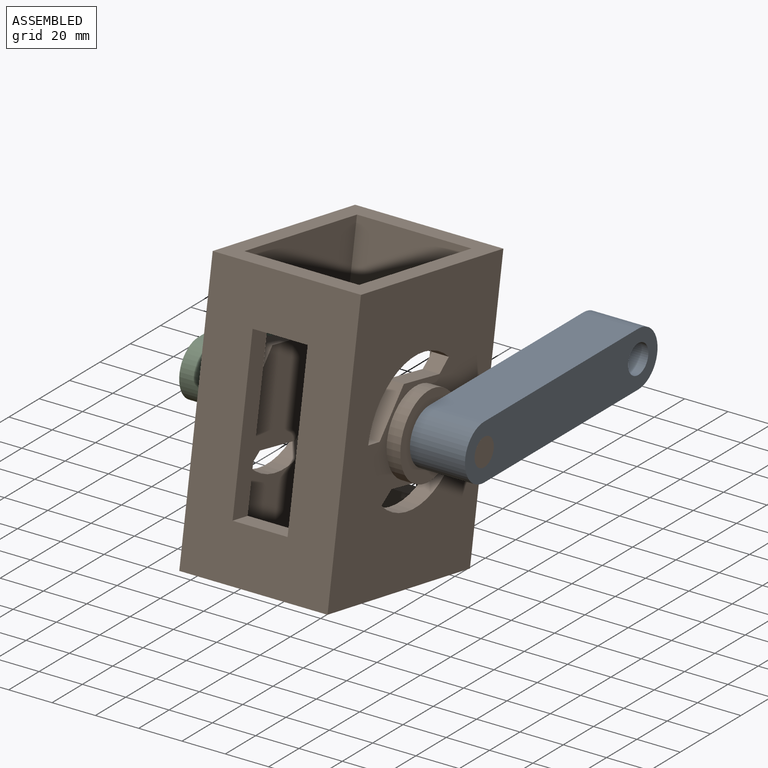
[diagram: assembled view]
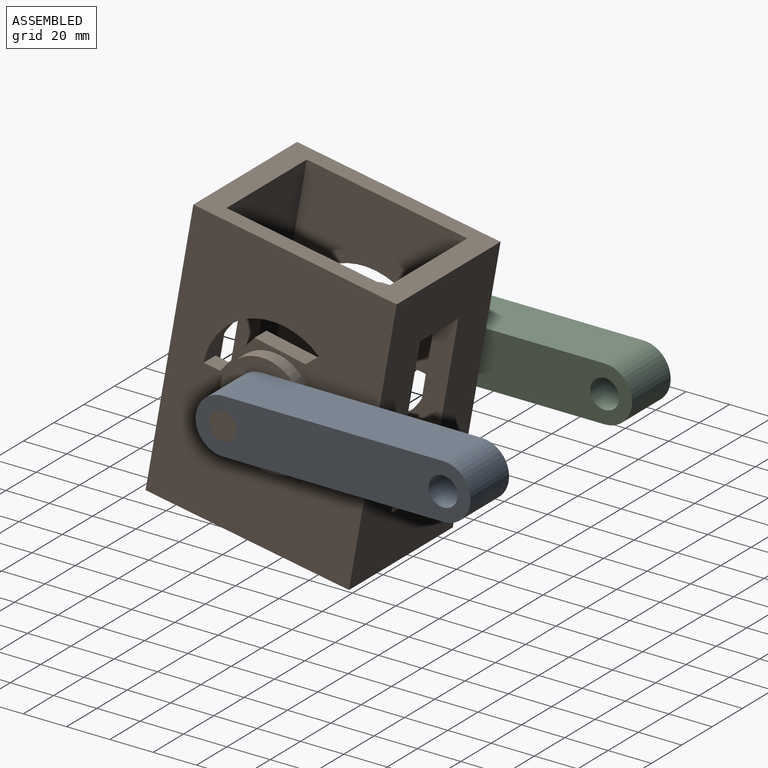
[diagram: assembled view, second angle]
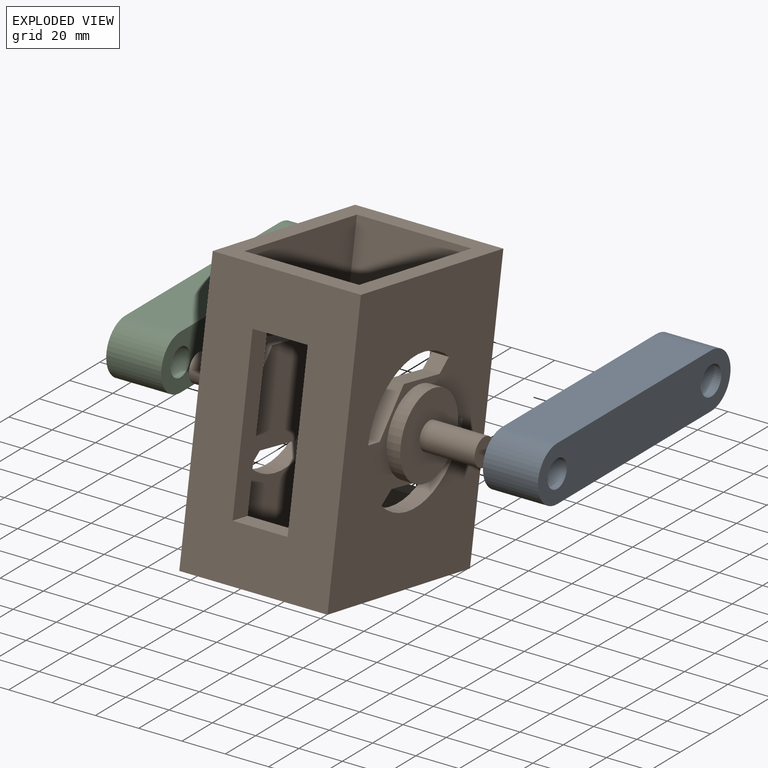
[diagram: exploded view]
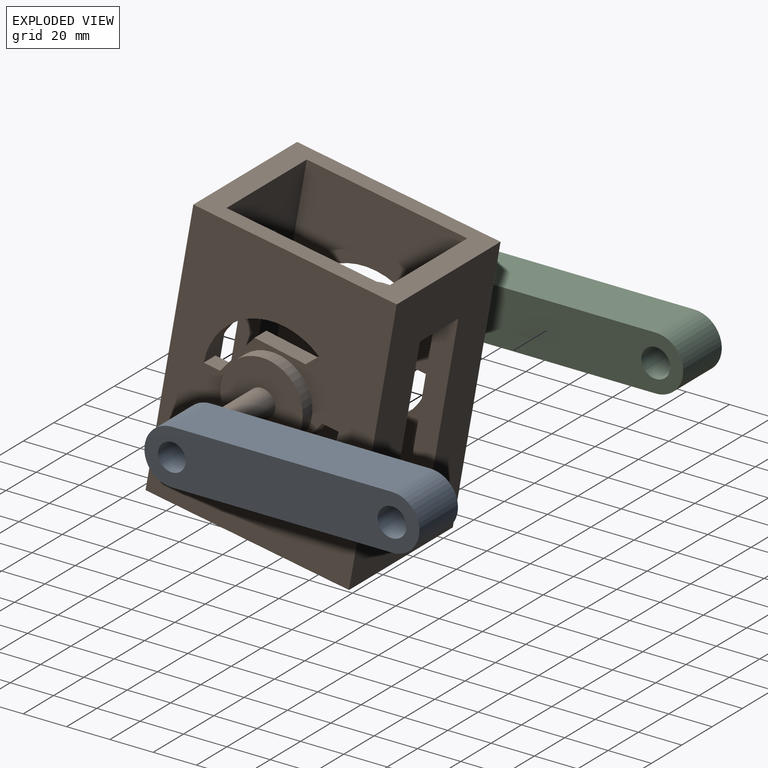
[diagram: exploded view, second angle]
ASSEMBLY  parts=3 mates=2
PART A: 8 faces, bbox 25.4x127x25.4 mm
  f0: cylinder r=12.7mm len=25.4mm, axis (-1,0,0), area 1013.4mm2, adj f1,f3,f6,f7
  f1: plane 101.6x25.4mm, normal (0,0,1), area 2580.6mm2, adj f0,f2,f6,f7
  f2: cylinder r=12.7mm len=25.4mm, axis (-1,0,0), area 1013.4mm2, adj f1,f3,f6,f7
  f3: plane 101.6x25.4mm, normal (0,0,-1), area 2580.6mm2, adj f0,f2,f6,f7
  f4: cylinder r=6.65mm len=25.4mm, axis (-1,0,0), area 1062mm2, adj f6,f7
  f5: cylinder r=6.35mm len=25.4mm, axis (-1,0,0), area 1013.4mm2, adj f6,f7
  f6: plane 127x25.4mm, normal (1,0,0), area 2821.5mm2, adj f0,f1,f2,f3,f4,f5
  f7: plane 127x25.4mm, normal (-1,0,0), area 2821.5mm2, adj f0,f1,f2,f3,f4,f5
PART B: 46 faces, bbox 95.4x127x131.9 mm
  f0: plane 127x52.9mm, normal (-1,0,0), area 4782.5mm2, adj f4,f7,f8,f9,f38,f39,f40,f41
  f1: plane 127x52.9mm, normal (1,0,0), area 4782.5mm2, adj f4,f7,f8,f9,f34,f35,f36,f37
  f2: plane 127x68.44mm, normal (1,0,0), area 6757mm2, adj f5,f6,f8,f9,f38,f39,f40,f41
  f3: plane 127x68.44mm, normal (-1,0,0), area 6757mm2, adj f5,f6,f8,f9,f34,f35,f36,f37
  f4: plane 127x75.27mm, normal (0,0,1), area 8435.6mm2, adj f0,f1,f8,f9,f20,f21,f22,f23
  f5: plane 127x95.37mm, normal (0,0,-1), area 9847.8mm2, adj f2,f3,f8,f9,f20,f21,f22,f23
  f6: plane 127x95.37mm, normal (0,0,1), area 9847.8mm2, adj f2,f3,f8,f9,f10,f11,f12,f13
  f7: plane 127x75.27mm, normal (0,0,-1), area 8435.6mm2, adj f0,f1,f8,f9,f10,f11,f12,f13
  f8: plane 95.37x68.44mm, normal (0,-1,0), area 2545.8mm2, adj f0,f1,f2,f3,f4,f5,f6,f7
  f9: plane 95.37x68.44mm, normal (0,1,0), area 2545.8mm2, adj f0,f1,f2,f3,f4,f5,f6,f7
  f10: plane 7.77x5.82mm, normal (0.75,-0.66,0), area 60.6mm2, adj f6,f7,f11,f14
  f11: plane 24.04x7.77mm, normal (-0.03,-1,0), area 187mm2, adj f6,f7,f10,f12
  f12: plane 20.52x12.55mm, normal (0.85,-0.52,0), area 187mm2, adj f6,f7,f11,f13
  f13: plane 7.77x7.7mm, normal (0,-1,0), area 59.9mm2, adj f6,f7,f12,f14
  f14: cylinder r=31.75mm len=49.47mm, axis (0,0,1), area 529.2mm2, adj f6,f7,f10,f13
  f15: cylinder r=31.75mm len=49.94mm, axis (0,0,1), area 533.6mm2, adj f6,f7,f16,f19
  f16: plane 7.77x5.65mm, normal (-0.7,0.72,0), area 61.3mm2, adj f6,f7,f15,f17
  f17: plane 24.04x7.77mm, normal (0.03,1,0), area 187mm2, adj f6,f7,f16,f18
  f18: plane 20.52x12.55mm, normal (-0.85,0.52,0), area 187mm2, adj f6,f7,f17,f19
  f19: plane 7.77x7.7mm, normal (0,1,0), area 59.9mm2, adj f6,f7,f15,f18
  f20: cylinder r=31.75mm len=49.47mm, axis (0,0,1), area 529.2mm2, adj f4,f5,f21,f24
  f21: plane 7.77x7.7mm, normal (0,-1,0), area 59.9mm2, adj f4,f5,f20,f22
  f22: plane 20.52x12.55mm, normal (0.85,-0.52,0), area 187mm2, adj f4,f5,f21,f23
  f23: plane 24.04x7.77mm, normal (-0.03,-1,0), area 187mm2, adj f4,f5,f22,f24
  f24: plane 7.77x5.82mm, normal (0.75,-0.66,0), area 60.6mm2, adj f4,f5,f20,f23
  f25: plane 7.77x7.7mm, normal (0,1,0), area 59.9mm2, adj f4,f5,f26,f29
  f26: plane 20.52x12.55mm, normal (-0.85,0.52,0), area 187mm2, adj f4,f5,f25,f27
  f27: plane 24.04x7.77mm, normal (0.03,1,0), area 187mm2, adj f4,f5,f26,f28
  f28: plane 7.77x5.65mm, normal (-0.7,0.72,0), area 61.3mm2, adj f4,f5,f27,f29
  f29: cylinder r=31.75mm len=49.94mm, axis (0,0,1), area 533.6mm2, adj f4,f5,f25,f28
  f30: cylinder r=19.05mm len=38.1mm, axis (0,0,-1), area 760.1mm2, adj f6,f31
  f31: plane 38.1x38.1mm, normal (0,0,1), area 1013.4mm2, adj f30,f42
  f32: cylinder r=19.05mm len=38.1mm, axis (0,0,1), area 760.1mm2, adj f5,f33
  f33: plane 38.1x38.1mm, normal (0,0,-1), area 1013.4mm2, adj f32,f44
  f34: plane 25.4x10.05mm, normal (0,1,0), area 255.2mm2, adj f1,f3,f35,f37
  f35: plane 76.2x10.05mm, normal (0,0,-1), area 765.7mm2, adj f1,f3,f34,f36
  f36: plane 25.4x10.05mm, normal (0,-1,0), area 255.2mm2, adj f1,f3,f35,f37
  f37: plane 76.2x10.05mm, normal (0,0,1), area 765.7mm2, adj f1,f3,f34,f36
  f38: plane 76.2x10.05mm, normal (0,0,1), area 765.7mm2, adj f0,f2,f39,f41
  f39: plane 25.4x10.05mm, normal (0,-1,0), area 255.2mm2, adj f0,f2,f38,f40
  f40: plane 76.2x10.05mm, normal (0,0,-1), area 765.7mm2, adj f0,f2,f39,f41
  f41: plane 25.4x10.05mm, normal (0,1,0), area 255.2mm2, adj f0,f2,f38,f40
  f42: cylinder r=6.35mm len=25.4mm, axis (0,0,-1), area 1013.4mm2, adj f31,f43
  f43: plane 12.7x12.7mm, normal (0,0,1), area 126.7mm2, adj f42
  f44: cylinder r=6.35mm len=25.4mm, axis (0,0,1), area 1013.4mm2, adj f33,f45
  f45: plane 12.7x12.7mm, normal (0,0,-1), area 126.7mm2, adj f44
PART C: same geometry as A
PLACE A t=(71.75,-2.97,-12.63)mm
PLACE B rot(axis=(-0.61,0.51,-0.61),125.9deg) t=(31.18,-53.77,-12.63)mm
PLACE C rot(axis=(0.45,0,0.89),0deg) t=(-34.79,-2.97,-12.63)mm
MATE revolute C.f2 <-> B.f14  axis (-1,0,0) through (-34.79,-53.77,-12.63)mm
MATE revolute B.f14 <-> A.f2  axis (-1,0,0) through (97.15,-53.77,-12.63)mm
